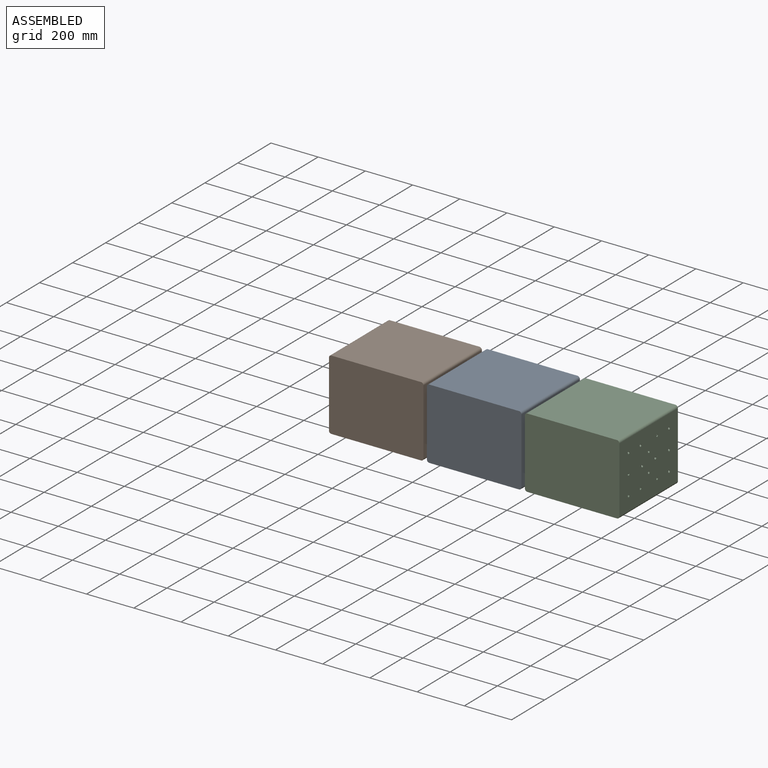
[diagram: assembled view]
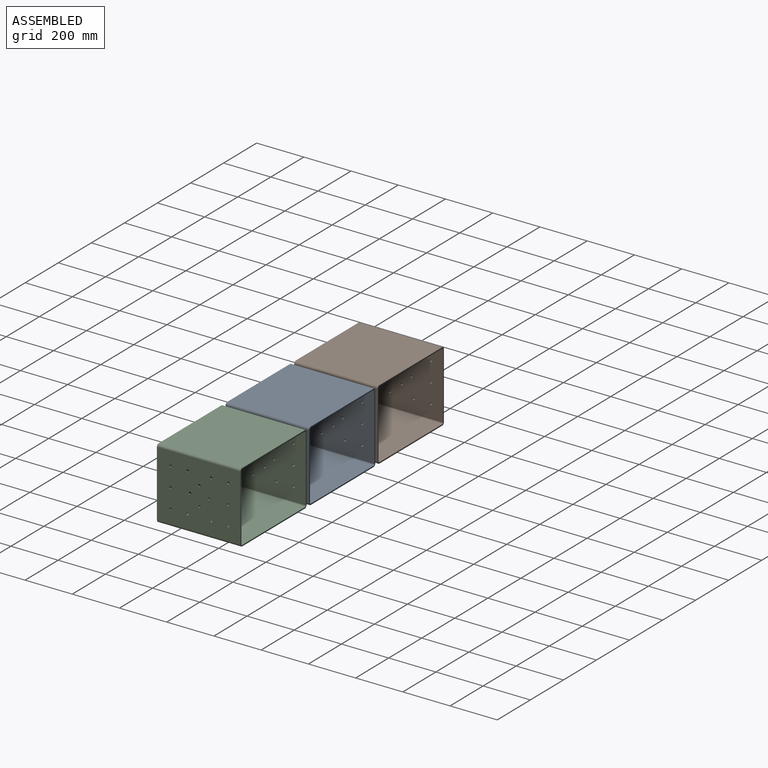
[diagram: assembled view, second angle]
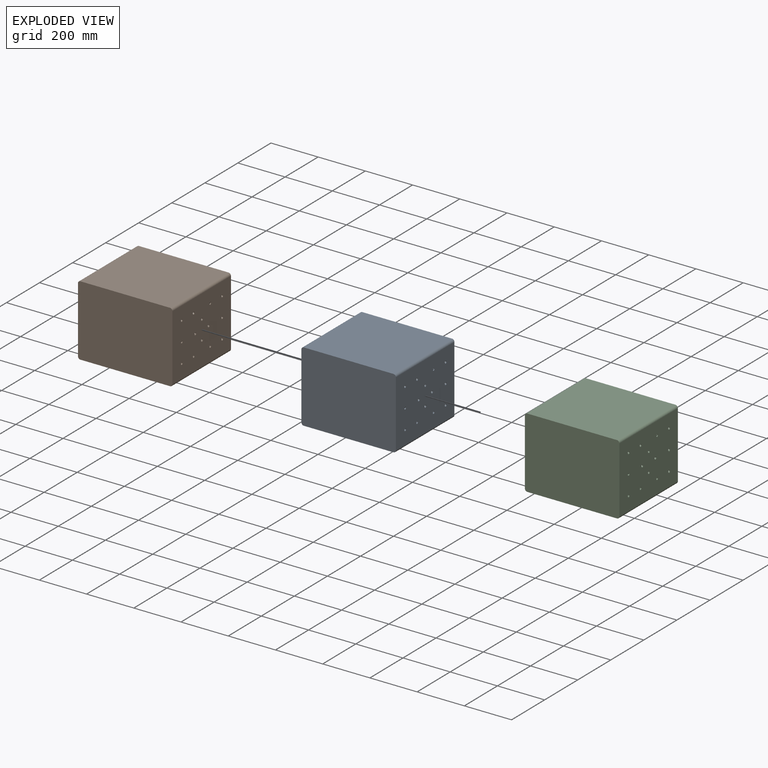
[diagram: exploded view]
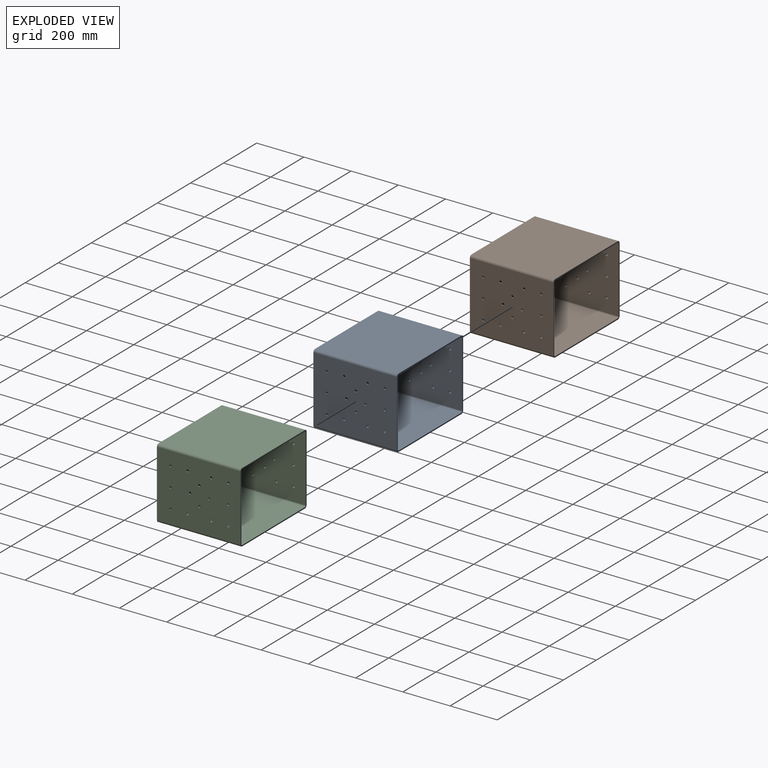
[diagram: exploded view, second angle]
ASSEMBLY  parts=3 mates=2
PART A: 244 faces, bbox 415x354x300 mm
  f0: cylinder r=5mm len=350mm, axis (0,1,0), area 2748.9mm2, adj f1,f7,f16,f243
  f1: plane 350x280mm, normal (-1,0,0), area 96900.4mm2, adj f0,f2,f16,f228,f229,f230,f231,f232
  f2: cylinder r=5mm len=350mm, axis (0,1,0), area 2748.9mm2, adj f1,f3,f16,f243
  f3: plane 380x350mm, normal (0,0,1), area 133000mm2, adj f2,f4,f16,f243
  f4: cylinder r=5mm len=350mm, axis (0,1,0), area 2748.9mm2, adj f3,f5,f16,f243
  f5: plane 350x280mm, normal (1,0,0), area 96900.4mm2, adj f4,f6,f16,f214,f215,f216,f217,f218
  f6: cylinder r=5mm len=350mm, axis (0,1,0), area 2748.9mm2, adj f5,f7,f16,f243
  f7: plane 380x350mm, normal (0,0,-1), area 133000mm2, adj f0,f6,f16,f243
  f8: plane 354x280mm, normal (-1,0,0), area 56628.2mm2, adj f12,f13,f16,f149,f150,f151,f152,f153
  f9: plane 354x280mm, normal (1,0,0), area 98020.4mm2, adj f10,f15,f16,f228,f229,f230,f231,f232
  f10: cylinder r=10mm len=354mm, axis (0,1,0), area 5560.6mm2, adj f9,f11,f16,f242
  f11: plane 380x354mm, normal (0,0,1), area 134520mm2, adj f10,f12,f16,f242
  f12: cylinder r=10mm len=354mm, axis (0,1,0), area 5560.6mm2, adj f8,f11,f16,f242
  f13: cylinder r=10mm len=354mm, axis (0,1,0), area 5560.6mm2, adj f8,f14,f16,f242
  f14: plane 380x354mm, normal (0,0,-1), area 134520mm2, adj f13,f15,f16,f242
  f15: cylinder r=10mm len=354mm, axis (0,1,0), area 5560.6mm2, adj f9,f14,f16,f242
  f16: plane 400x300mm, normal (0,1,0), area 6835.6mm2, adj f0,f1,f2,f3,f4,f5,f6,f7
  f17: plane 77.76x15mm, normal (0,0,-1), area 1166.4mm2, adj f18,f200,f201,f202
  f18: plane 34.64x34.64mm, normal (0,0.71,0.71), area 734.7mm2, adj f17,f19,f201,f202
  f19: cylinder r=1.5mm len=15mm, axis (1,0,0), area 2.3mm2, adj f18,f20,f201,f202
  f20: cylinder r=7.5mm len=15mm, axis (1,0,0), area 131.6mm2, adj f19,f21,f201,f202
  f21: cylinder r=1.5mm len=15mm, axis (1,0,0), area 2.3mm2, adj f20,f200,f201,f202
  f22: cylinder r=1.5mm len=15mm, axis (1,0,0), area 2.3mm2, adj f23,f188,f201,f213
  f23: cylinder r=7.5mm len=15mm, axis (1,0,0), area 43.3mm2, adj f22,f24,f201,f213
  f24: cylinder r=1.5mm len=15mm, axis (1,0,0), area 2.3mm2, adj f23,f25,f201,f213
  f25: plane 29.39x29.39mm, normal (0,0.71,0.71), area 623.5mm2, adj f24,f26,f201,f213
  f26: cylinder r=1.5mm len=15mm, axis (1,0,0), area 2.3mm2, adj f25,f27,f201,f213
  f27: cylinder r=7.5mm len=15mm, axis (1,0,0), area 131.6mm2, adj f26,f28,f201,f213
  f28: cylinder r=1.5mm len=15mm, axis (1,0,0), area 2.3mm2, adj f27,f29,f201,f213
  f29: plane 29.39x29.39mm, normal (0,-0.71,0.71), area 623.5mm2, adj f28,f30,f201,f213
  f30: cylinder r=1.5mm len=15mm, axis (1,0,0), area 2.3mm2, adj f29,f31,f201,f213
  f31: cylinder r=7.5mm len=15mm, axis (1,0,0), area 43.3mm2, adj f30,f32,f201,f213
  f32: cylinder r=1.5mm len=15mm, axis (1,0,0), area 2.3mm2, adj f31,f188,f201,f213
  f33: cylinder r=1.5mm len=15mm, axis (1,0,0), area 2.3mm2, adj f34,f189,f201,f212
  f34: cylinder r=7.5mm len=15mm, axis (1,0,0), area 43.3mm2, adj f33,f35,f201,f212
  f35: cylinder r=1.5mm len=15mm, axis (1,0,0), area 2.3mm2, adj f34,f36,f201,f212
  f36: plane 65x15mm, normal (0,0,1), area 975mm2, adj f35,f37,f201,f212
  f37: cylinder r=1.5mm len=15mm, axis (1,0,0), area 2.3mm2, adj f36,f38,f201,f212
  f38: cylinder r=7.5mm len=15mm, axis (1,0,0), area 43.3mm2, adj f37,f39,f201,f212
  f39: cylinder r=1.5mm len=15mm, axis (1,0,0), area 2.3mm2, adj f38,f40,f201,f212
  f40: plane 29.39x29.39mm, normal (0,-0.71,-0.71), area 623.5mm2, adj f39,f41,f201,f212
  f41: cylinder r=1.5mm len=15mm, axis (1,0,0), area 2.3mm2, adj f40,f42,f201,f212
  f42: cylinder r=7.5mm len=15mm, axis (1,0,0), area 131.6mm2, adj f41,f43,f201,f212
  f43: cylinder r=1.5mm len=15mm, axis (1,0,0), area 2.3mm2, adj f42,f189,f201,f212
  f44: plane 34.64x34.64mm, normal (0,0.71,-0.71), area 734.7mm2, adj f45,f190,f201,f211
  f45: plane 77.76x15mm, normal (0,0,1), area 1166.4mm2, adj f44,f46,f201,f211
  f46: plane 34.64x34.64mm, normal (0,-0.71,-0.71), area 734.7mm2, adj f45,f47,f201,f211
  f47: cylinder r=1.5mm len=15mm, axis (1,0,0), area 2.3mm2, adj f46,f48,f201,f211
  f48: cylinder r=7.5mm len=15mm, axis (1,0,0), area 131.6mm2, adj f47,f190,f201,f211
  f49: cylinder r=1.5mm len=15mm, axis (1,0,0), area 2.3mm2, adj f50,f191,f201,f210
  f50: cylinder r=7.5mm len=15mm, axis (1,0,0), area 43.3mm2, adj f49,f51,f201,f210
  f51: cylinder r=1.5mm len=15mm, axis (1,0,0), area 2.3mm2, adj f50,f52,f201,f210
  f52: plane 67.5x15mm, normal (0,1,0), area 1012.5mm2, adj f51,f53,f201,f210
  f53: cylinder r=1.5mm len=15mm, axis (1,0,0), area 2.3mm2, adj f52,f54,f201,f210
  f54: cylinder r=7.5mm len=15mm, axis (1,0,0), area 131.6mm2, adj f53,f55,f201,f210
  f55: cylinder r=1.5mm len=15mm, axis (1,0,0), area 2.3mm2, adj f54,f56,f201,f210
  f56: plane 67.5x15mm, normal (0,0,1), area 1012.5mm2, adj f55,f57,f201,f210
  f57: cylinder r=1.5mm len=15mm, axis (1,0,0), area 2.3mm2, adj f56,f58,f201,f210
  f58: cylinder r=7.5mm len=15mm, axis (1,0,0), area 43.3mm2, adj f57,f59,f201,f210
  f59: cylinder r=1.5mm len=15mm, axis (1,0,0), area 2.3mm2, adj f58,f191,f201,f210
  f60: cylinder r=1.5mm len=15mm, axis (1,0,0), area 2.3mm2, adj f61,f192,f201,f209
  f61: cylinder r=7.5mm len=15mm, axis (1,0,0), area 43.3mm2, adj f60,f62,f201,f209
  f62: cylinder r=1.5mm len=15mm, axis (1,0,0), area 2.3mm2, adj f61,f63,f201,f209
  f63: plane 71.89x71.89mm, normal (0,0.71,-0.71), area 1525.1mm2, adj f62,f64,f201,f209
  f64: cylinder r=1.5mm len=15mm, axis (1,0,0), area 2.3mm2, adj f63,f65,f201,f209
  f65: cylinder r=7.5mm len=15mm, axis (1,0,0), area 43.3mm2, adj f64,f66,f201,f209
  f66: cylinder r=1.5mm len=15mm, axis (1,0,0), area 2.3mm2, adj f65,f67,f201,f209
  f67: plane 67.5x15mm, normal (0,0,1), area 1012.5mm2, adj f66,f68,f201,f209
  f68: cylinder r=1.5mm len=15mm, axis (1,0,0), area 2.3mm2, adj f67,f69,f201,f209
  f69: cylinder r=7.5mm len=15mm, axis (1,0,0), area 131.6mm2, adj f68,f70,f201,f209
  f70: cylinder r=1.5mm len=15mm, axis (1,0,0), area 2.3mm2, adj f69,f192,f201,f209
  f71: cylinder r=1.5mm len=15mm, axis (1,0,0), area 2.3mm2, adj f72,f193,f201,f208
  f72: cylinder r=7.5mm len=15mm, axis (1,0,0), area 302.4mm2, adj f71,f73,f201,f208
  f73: plane 36.38x36.38mm, normal (0,0.71,-0.71), area 771.6mm2, adj f72,f74,f201,f208
  f74: cylinder r=1.5mm len=15mm, axis (1,0,0), area 2.3mm2, adj f73,f75,f201,f208
  f75: cylinder r=7.5mm len=15mm, axis (1,0,0), area 131.6mm2, adj f74,f76,f201,f208
  f76: cylinder r=1.5mm len=15mm, axis (1,0,0), area 2.3mm2, adj f75,f77,f201,f208
  f77: plane 29.39x29.39mm, normal (0,0.71,0.71), area 623.5mm2, adj f76,f78,f201,f208
  f78: cylinder r=1.5mm len=15mm, axis (1,0,0), area 2.3mm2, adj f77,f79,f201,f208
  f79: cylinder r=7.5mm len=15mm, axis (1,0,0), area 131.6mm2, adj f78,f80,f201,f208
  f80: cylinder r=1.5mm len=15mm, axis (1,0,0), area 2.3mm2, adj f79,f81,f201,f208
  f81: plane 71.89x71.89mm, normal (0,-0.71,0.71), area 1525.1mm2, adj f80,f82,f201,f208
  f82: cylinder r=1.5mm len=15mm, axis (1,0,0), area 2.3mm2, adj f81,f83,f201,f208
  f83: cylinder r=7.5mm len=15mm, axis (1,0,0), area 43.3mm2, adj f82,f84,f201,f208
  f84: cylinder r=1.5mm len=15mm, axis (1,0,0), area 2.3mm2, adj f83,f193,f201,f208
  f85: cylinder r=7.5mm len=15mm, axis (1,0,0), area 43.3mm2, adj f86,f194,f201,f207
  f86: cylinder r=1.5mm len=15mm, axis (1,0,0), area 2.3mm2, adj f85,f87,f201,f207
  f87: plane 71.89x71.89mm, normal (0,-0.71,0.71), area 1525.1mm2, adj f86,f88,f201,f207
  f88: cylinder r=1.5mm len=15mm, axis (1,0,0), area 2.3mm2, adj f87,f89,f201,f207
  f89: cylinder r=7.5mm len=15mm, axis (1,0,0), area 43.3mm2, adj f88,f90,f201,f207
  f90: cylinder r=1.5mm len=15mm, axis (1,0,0), area 2.3mm2, adj f89,f91,f201,f207
  f91: plane 67.5x15mm, normal (0,0,-1), area 1012.5mm2, adj f90,f92,f201,f207
  f92: cylinder r=1.5mm len=15mm, axis (1,0,0), area 2.3mm2, adj f91,f93,f201,f207
  f93: cylinder r=7.5mm len=15mm, axis (1,0,0), area 131.6mm2, adj f92,f94,f201,f207
  f94: cylinder r=1.5mm len=15mm, axis (1,0,0), area 2.3mm2, adj f93,f95,f201,f207
  f95: plane 67.5x15mm, normal (0,1,0), area 1012.5mm2, adj f94,f194,f201,f207
  f96: cylinder r=1.5mm len=15mm, axis (1,0,0), area 2.3mm2, adj f97,f195,f201,f206
  f97: cylinder r=7.5mm len=15mm, axis (1,0,0), area 43.3mm2, adj f96,f98,f201,f206
  f98: cylinder r=1.5mm len=15mm, axis (1,0,0), area 2.3mm2, adj f97,f99,f201,f206
  f99: plane 57.5x15mm, normal (0,0,1), area 862.5mm2, adj f98,f100,f201,f206
  f100: cylinder r=1.5mm len=15mm, axis (1,0,0), area 2.3mm2, adj f99,f101,f201,f206
  f101: cylinder r=7.5mm len=15mm, axis (1,0,0), area 302.4mm2, adj f100,f102,f201,f206
  f102: plane 36.38x36.38mm, normal (0,-0.71,0.71), area 771.6mm2, adj f101,f103,f201,f206
  f103: cylinder r=1.5mm len=15mm, axis (1,0,0), area 2.3mm2, adj f102,f104,f201,f206
  f104: cylinder r=7.5mm len=15mm, axis (1,0,0), area 131.6mm2, adj f103,f105,f201,f206
  f105: cylinder r=1.5mm len=15mm, axis (1,0,0), area 2.3mm2, adj f104,f106,f201,f206
  f106: plane 29.39x29.39mm, normal (0,-0.71,-0.71), area 623.5mm2, adj f105,f107,f201,f206
  f107: cylinder r=1.5mm len=15mm, axis (1,0,0), area 2.3mm2, adj f106,f108,f201,f206
  f108: cylinder r=7.5mm len=15mm, axis (1,0,0), area 131.6mm2, adj f107,f109,f201,f206
  f109: cylinder r=1.5mm len=15mm, axis (1,0,0), area 2.3mm2, adj f108,f195,f201,f206
  f110: cylinder r=1.5mm len=15mm, axis (1,0,0), area 2.3mm2, adj f111,f196,f201,f205
  f111: cylinder r=7.5mm len=15mm, axis (1,0,0), area 43.3mm2, adj f110,f112,f201,f205
  f112: cylinder r=1.5mm len=15mm, axis (1,0,0), area 2.3mm2, adj f111,f113,f201,f205
  f113: plane 67.5x15mm, normal (0,-1,0), area 1012.5mm2, adj f112,f114,f201,f205
  f114: cylinder r=1.5mm len=15mm, axis (1,0,0), area 2.3mm2, adj f113,f115,f201,f205
  f115: cylinder r=7.5mm len=15mm, axis (1,0,0), area 131.6mm2, adj f114,f116,f201,f205
  f116: cylinder r=1.5mm len=15mm, axis (1,0,0), area 2.3mm2, adj f115,f117,f201,f205
  f117: plane 67.5x15mm, normal (0,0,-1), area 1012.5mm2, adj f116,f118,f201,f205
  f118: cylinder r=1.5mm len=15mm, axis (1,0,0), area 2.3mm2, adj f117,f119,f201,f205
  f119: cylinder r=7.5mm len=15mm, axis (1,0,0), area 43.3mm2, adj f118,f120,f201,f205
  f120: cylinder r=1.5mm len=15mm, axis (1,0,0), area 2.3mm2, adj f119,f196,f201,f205
  f121: cylinder r=7.5mm len=15mm, axis (1,0,0), area 302.4mm2, adj f122,f197,f201,f204
  f122: cylinder r=1.5mm len=15mm, axis (1,0,0), area 2.3mm2, adj f121,f123,f201,f204
  f123: plane 57.5x15mm, normal (0,0,1), area 862.5mm2, adj f122,f124,f201,f204
  f124: cylinder r=1.5mm len=15mm, axis (1,0,0), area 2.3mm2, adj f123,f125,f201,f204
  f125: cylinder r=7.5mm len=15mm, axis (1,0,0), area 43.3mm2, adj f124,f126,f201,f204
  f126: cylinder r=1.5mm len=15mm, axis (1,0,0), area 2.3mm2, adj f125,f127,f201,f204
  f127: plane 71.89x71.89mm, normal (0,-0.71,-0.71), area 1525.1mm2, adj f126,f128,f201,f204
  f128: cylinder r=1.5mm len=15mm, axis (1,0,0), area 2.3mm2, adj f127,f129,f201,f204
  f129: cylinder r=7.5mm len=15mm, axis (1,0,0), area 131.6mm2, adj f128,f130,f201,f204
  f130: cylinder r=1.5mm len=15mm, axis (1,0,0), area 2.3mm2, adj f129,f131,f201,f204
  f131: plane 29.39x29.39mm, normal (0,0.71,-0.71), area 623.5mm2, adj f130,f132,f201,f204
  f132: cylinder r=1.5mm len=15mm, axis (1,0,0), area 2.3mm2, adj f131,f133,f201,f204
  f133: cylinder r=7.5mm len=15mm, axis (1,0,0), area 131.6mm2, adj f132,f134,f201,f204
  f134: cylinder r=1.5mm len=15mm, axis (1,0,0), area 2.3mm2, adj f133,f197,f201,f204
  f135: plane 36.38x36.38mm, normal (0,-0.71,-0.71), area 771.6mm2, adj f136,f198,f201,f203
  f136: cylinder r=7.5mm len=15mm, axis (1,0,0), area 302.4mm2, adj f135,f137,f201,f203
  f137: cylinder r=1.5mm len=15mm, axis (1,0,0), area 2.3mm2, adj f136,f138,f201,f203
  f138: plane 57.5x15mm, normal (0,0,-1), area 862.5mm2, adj f137,f139,f201,f203
  f139: cylinder r=1.5mm len=15mm, axis (1,0,0), area 2.3mm2, adj f138,f140,f201,f203
  f140: cylinder r=7.5mm len=15mm, axis (1,0,0), area 43.3mm2, adj f139,f141,f201,f203
  f141: cylinder r=1.5mm len=15mm, axis (1,0,0), area 2.3mm2, adj f140,f142,f201,f203
  f142: plane 71.89x71.89mm, normal (0,0.71,0.71), area 1525.1mm2, adj f141,f143,f201,f203
  f143: cylinder r=1.5mm len=15mm, axis (1,0,0), area 2.3mm2, adj f142,f144,f201,f203
  f144: cylinder r=7.5mm len=15mm, axis (1,0,0), area 131.6mm2, adj f143,f145,f201,f203
  f145: cylinder r=1.5mm len=15mm, axis (1,0,0), area 2.3mm2, adj f144,f146,f201,f203
  f146: plane 29.39x29.39mm, normal (0,-0.71,0.71), area 623.5mm2, adj f145,f147,f201,f203
  f147: cylinder r=1.5mm len=15mm, axis (1,0,0), area 2.3mm2, adj f146,f148,f201,f203
  f148: cylinder r=7.5mm len=15mm, axis (1,0,0), area 131.6mm2, adj f147,f198,f201,f203
  f149: cylinder r=7.5mm len=15mm, axis (1,0,0), area 308.4mm2, adj f8,f150,f199,f201
  f150: cylinder r=1.5mm len=15mm, axis (1,0,0), area 2.3mm2, adj f8,f149,f151,f201
  f151: plane 85x15mm, normal (0,0,1), area 1275mm2, adj f8,f150,f152,f201
  f152: cylinder r=1.5mm len=15mm, axis (1,0,0), area 2.3mm2, adj f8,f151,f153,f201
  f153: cylinder r=7.5mm len=15mm, axis (1,0,0), area 308.4mm2, adj f8,f152,f154,f201
  f154: cylinder r=1.5mm len=15mm, axis (1,0,0), area 2.3mm2, adj f8,f153,f155,f201
  f155: plane 57.5x15mm, normal (0,0,1), area 862.5mm2, adj f8,f154,f156,f201
  f156: cylinder r=1.5mm len=15mm, axis (1,0,0), area 2.3mm2, adj f8,f155,f157,f201
  f157: cylinder r=7.5mm len=15mm, axis (1,0,0), area 485.1mm2, adj f8,f156,f158,f201
  f158: cylinder r=1.5mm len=15mm, axis (1,0,0), area 2.3mm2, adj f8,f157,f159,f201
  f159: plane 67.5x15mm, normal (0,1,0), area 1012.5mm2, adj f8,f158,f160,f201
  f160: cylinder r=1.5mm len=15mm, axis (1,0,0), area 2.3mm2, adj f8,f159,f161,f201
  f161: cylinder r=7.5mm len=15mm, axis (1,0,0), area 308.4mm2, adj f8,f160,f162,f201
  f162: cylinder r=1.5mm len=15mm, axis (1,0,0), area 2.3mm2, adj f8,f161,f163,f201
  f163: plane 67.5x15mm, normal (0,1,0), area 1012.5mm2, adj f8,f162,f164,f201
  f164: cylinder r=1.5mm len=15mm, axis (1,0,0), area 2.3mm2, adj f8,f163,f165,f201
  f165: cylinder r=7.5mm len=15mm, axis (1,0,0), area 485.1mm2, adj f8,f164,f166,f201
  f166: cylinder r=1.5mm len=15mm, axis (1,0,0), area 2.3mm2, adj f8,f165,f167,f201
  f167: plane 57.5x15mm, normal (0,0,-1), area 862.5mm2, adj f8,f166,f168,f201
  f168: cylinder r=1.5mm len=15mm, axis (1,0,0), area 2.3mm2, adj f8,f167,f169,f201
  f169: cylinder r=7.5mm len=15mm, axis (1,0,0), area 308.4mm2, adj f8,f168,f170,f201
  f170: cylinder r=1.5mm len=15mm, axis (1,0,0), area 2.3mm2, adj f8,f169,f171,f201
  f171: plane 85x15mm, normal (0,0,-1), area 1275mm2, adj f8,f170,f172,f201
  f172: cylinder r=1.5mm len=15mm, axis (1,0,0), area 2.3mm2, adj f8,f171,f173,f201
  f173: cylinder r=7.5mm len=15mm, axis (1,0,0), area 308.4mm2, adj f8,f172,f174,f201
  f174: cylinder r=1.5mm len=15mm, axis (1,0,0), area 2.3mm2, adj f8,f173,f175,f201
  f175: plane 57.5x15mm, normal (0,0,-1), area 862.5mm2, adj f8,f174,f176,f201
  f176: cylinder r=1.5mm len=15mm, axis (1,0,0), area 2.3mm2, adj f8,f175,f177,f201
  f177: cylinder r=7.5mm len=15mm, axis (1,0,0), area 485.1mm2, adj f8,f176,f178,f201
  f178: cylinder r=1.5mm len=15mm, axis (1,0,0), area 2.3mm2, adj f8,f177,f179,f201
  f179: plane 67.5x15mm, normal (0,-1,0), area 1012.5mm2, adj f8,f178,f180,f201
  f180: cylinder r=1.5mm len=15mm, axis (1,0,0), area 2.3mm2, adj f8,f179,f181,f201
  f181: cylinder r=7.5mm len=15mm, axis (1,0,0), area 308.4mm2, adj f8,f180,f182,f201
  f182: cylinder r=1.5mm len=15mm, axis (1,0,0), area 2.3mm2, adj f8,f181,f183,f201
  f183: plane 67.5x15mm, normal (0,-1,0), area 1012.5mm2, adj f8,f182,f184,f201
  f184: cylinder r=1.5mm len=15mm, axis (1,0,0), area 2.3mm2, adj f8,f183,f185,f201
  f185: cylinder r=7.5mm len=15mm, axis (1,0,0), area 485.1mm2, adj f8,f184,f186,f201
  f186: cylinder r=1.5mm len=15mm, axis (1,0,0), area 2.3mm2, adj f8,f185,f187,f201
  f187: plane 57.5x15mm, normal (0,0,1), area 862.5mm2, adj f8,f186,f199,f201
  f188: plane 65x15mm, normal (0,0,-1), area 975mm2, adj f22,f32,f201,f213
  f189: plane 29.39x29.39mm, normal (0,0.71,-0.71), area 623.5mm2, adj f33,f43,f201,f212
  f190: cylinder r=1.5mm len=15mm, axis (1,0,0), area 2.3mm2, adj f44,f48,f201,f211
  f191: plane 71.89x71.89mm, normal (0,-0.71,-0.71), area 1525.1mm2, adj f49,f59,f201,f210
  f192: plane 67.5x15mm, normal (0,-1,0), area 1012.5mm2, adj f60,f70,f201,f209
  f193: plane 57.5x15mm, normal (0,0,-1), area 862.5mm2, adj f71,f84,f201,f208
  f194: cylinder r=1.5mm len=15mm, axis (1,0,0), area 2.3mm2, adj f85,f95,f201,f207
  f195: plane 71.89x71.89mm, normal (0,0.71,-0.71), area 1525.1mm2, adj f96,f109,f201,f206
  f196: plane 71.89x71.89mm, normal (0,0.71,0.71), area 1525.1mm2, adj f110,f120,f201,f205
  f197: plane 36.38x36.38mm, normal (0,0.71,0.71), area 771.6mm2, adj f121,f134,f201,f204
  f198: cylinder r=1.5mm len=15mm, axis (1,0,0), area 2.3mm2, adj f135,f148,f201,f203
  f199: cylinder r=1.5mm len=15mm, axis (1,0,0), area 2.3mm2, adj f8,f149,f187,f201
  f200: plane 34.64x34.64mm, normal (0,-0.71,0.71), area 734.7mm2, adj f17,f21,f201,f202
  f201: plane 260x180mm, normal (-1,0,0), area 6315.7mm2, adj f17,f18,f19,f20,f21,f22,f23,f24
  f202: plane 77.76x34.75mm, normal (-1,0,0), area 1487.5mm2, adj f17,f18,f19,f20,f21,f200
  f203: plane 110x74.76mm, normal (-1,0,0), area 4421.6mm2, adj f135,f136,f137,f138,f139,f140,f141,f142
  f204: plane 110x74.76mm, normal (-1,0,0), area 4421.6mm2, adj f121,f122,f123,f124,f125,f126,f127,f128
  f205: plane 74.76x74.76mm, normal (-1,0,0), area 2959.3mm2, adj f110,f111,f112,f113,f114,f115,f116,f117
  f206: plane 110x74.76mm, normal (-1,0,0), area 4421.6mm2, adj f96,f97,f98,f99,f100,f101,f102,f103
  f207: plane 74.76x74.76mm, normal (-1,0,0), area 2959.3mm2, adj f85,f86,f87,f88,f89,f90,f91,f92
  f208: plane 110x74.76mm, normal (-1,0,0), area 4421.6mm2, adj f71,f72,f73,f74,f75,f76,f77,f78
  f209: plane 74.76x74.76mm, normal (-1,0,0), area 2959.3mm2, adj f60,f61,f62,f63,f64,f65,f66,f67
  f210: plane 74.76x74.76mm, normal (-1,0,0), area 2959.3mm2, adj f49,f50,f51,f52,f53,f54,f55,f56
  f211: plane 77.76x34.75mm, normal (-1,0,0), area 1487.5mm2, adj f44,f45,f46,f47,f48,f190
  f212: plane 67.5x32.26mm, normal (-1,0,0), area 1289mm2, adj f33,f34,f35,f36,f37,f38,f39,f40
  f213: plane 67.5x32.26mm, normal (-1,0,0), area 1289mm2, adj f22,f23,f24,f25,f26,f27,f28,f29
  f214: cylinder r=5mm len=20mm, axis (-1,0,0), area 628.3mm2, adj f5,f201
  f215: cylinder r=5mm len=20mm, axis (-1,0,0), area 628.3mm2, adj f5,f201
  f216: cylinder r=5mm len=20mm, axis (-1,0,0), area 628.3mm2, adj f5,f201
  f217: cylinder r=5mm len=20mm, axis (-1,0,0), area 628.3mm2, adj f5,f201
  f218: cylinder r=5mm len=20mm, axis (-1,0,0), area 628.3mm2, adj f5,f201
  f219: cylinder r=5mm len=20mm, axis (-1,0,0), area 628.3mm2, adj f5,f201
  f220: cylinder r=5mm len=20mm, axis (-1,0,0), area 628.3mm2, adj f5,f201
  f221: cylinder r=5mm len=20mm, axis (-1,0,0), area 628.3mm2, adj f5,f201
  f222: cylinder r=5mm len=20mm, axis (-1,0,0), area 628.3mm2, adj f5,f201
  f223: cylinder r=5mm len=20mm, axis (-1,0,0), area 628.3mm2, adj f5,f201
  f224: cylinder r=5mm len=20mm, axis (-1,0,0), area 628.3mm2, adj f5,f201
  f225: cylinder r=5mm len=20mm, axis (-1,0,0), area 628.3mm2, adj f5,f201
  f226: cylinder r=5mm len=20mm, axis (-1,0,0), area 628.3mm2, adj f5,f201
  f227: cylinder r=5mm len=20mm, axis (-1,0,0), area 628.3mm2, adj f5,f201
  f228: cylinder r=5mm len=10mm, axis (-1,0,0), area 157.1mm2, adj f1,f9
  f229: cylinder r=5mm len=10mm, axis (-1,0,0), area 157.1mm2, adj f1,f9
  f230: cylinder r=5mm len=10mm, axis (-1,0,0), area 157.1mm2, adj f1,f9
  f231: cylinder r=5mm len=10mm, axis (-1,0,0), area 157.1mm2, adj f1,f9
  f232: cylinder r=5mm len=10mm, axis (-1,0,0), area 157.1mm2, adj f1,f9
  f233: cylinder r=5mm len=10mm, axis (-1,0,0), area 157.1mm2, adj f1,f9
  f234: cylinder r=5mm len=10mm, axis (-1,0,0), area 157.1mm2, adj f1,f9
  f235: cylinder r=5mm len=10mm, axis (-1,0,0), area 157.1mm2, adj f1,f9
  f236: cylinder r=5mm len=10mm, axis (-1,0,0), area 157.1mm2, adj f1,f9
  f237: cylinder r=5mm len=10mm, axis (-1,0,0), area 157.1mm2, adj f1,f9
  f238: cylinder r=5mm len=10mm, axis (-1,0,0), area 157.1mm2, adj f1,f9
  f239: cylinder r=5mm len=10mm, axis (-1,0,0), area 157.1mm2, adj f1,f9
  f240: cylinder r=5mm len=10mm, axis (-1,0,0), area 157.1mm2, adj f1,f9
  f241: cylinder r=5mm len=10mm, axis (-1,0,0), area 157.1mm2, adj f1,f9
  f242: plane 400x300mm, normal (0,-1,0), area 119914.2mm2, adj f8,f9,f10,f11,f12,f13,f14,f15
  f243: plane 390x290mm, normal (0,1,0), area 113078.5mm2, adj f0,f1,f2,f3,f4,f5,f6,f7
PART B: same geometry as A
PART C: same geometry as A
PLACE A t=(-228.89,-92.22,58.12)mm
PLACE B t=(-643.89,-92.22,58.12)mm
PLACE C t=(186.11,-92.22,58.12)mm
MATE fastened C.f216 <-> A.f216  axis (-1,0,0) through (-28.89,30.28,58.12)mm
MATE fastened A.f216 <-> B.f216  axis (-1,0,0) through (-443.89,30.28,58.12)mm
